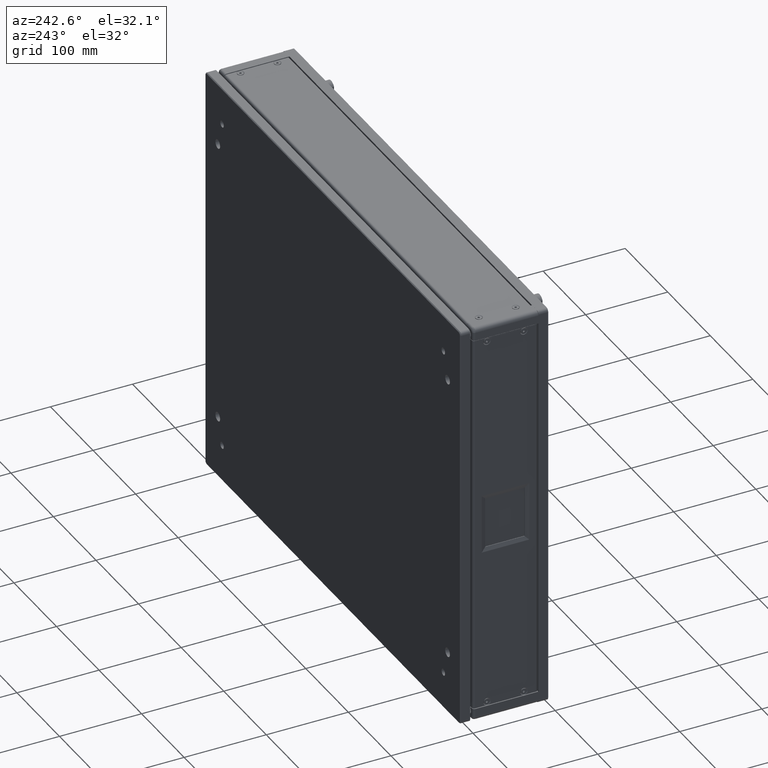
[diagram: clean part render]
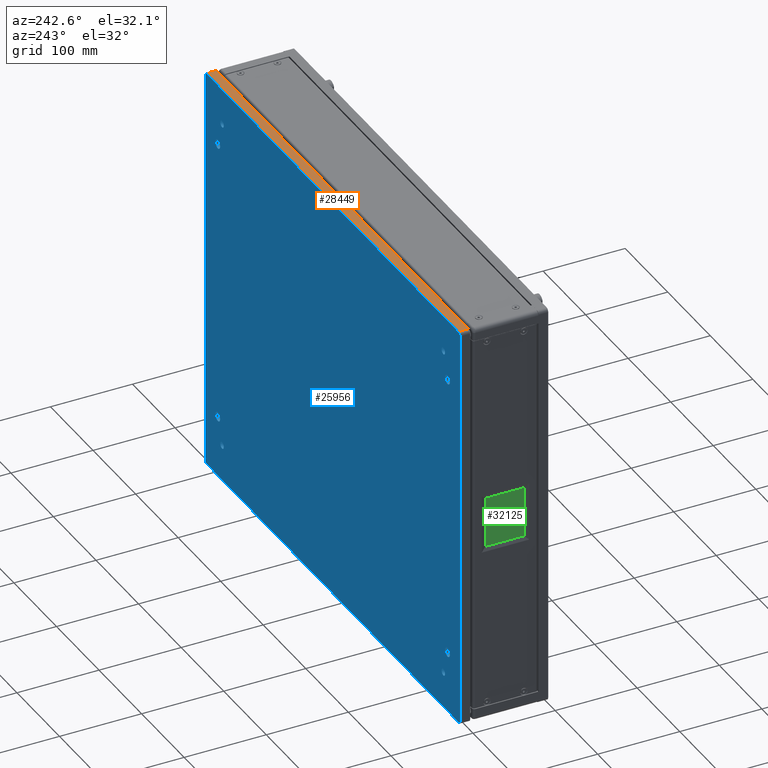
[diagram: same view with three faces highlighted in distinct colors, each labeled with its STEP entity id]
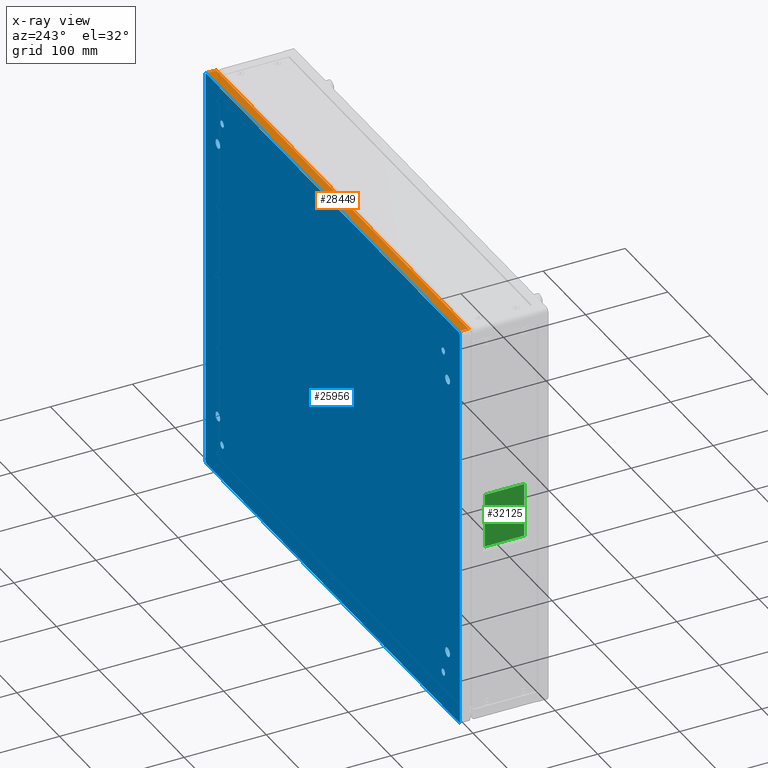
[diagram: x-ray of the same camera — body ghosted, the three highlighted faces saturated]
A machine part, auxiliary view with three faces highlighted in distinct colors.
The next image is the same camera in x-ray (body ghosted, the three faces saturated) — at least one of them is partly hidden behind the body in this view.
Their STEP definitions:

[orange] entity #28449 — the highlighted planar face has unit normal (-0, 0, 1).
#1026 = EDGE_CURVE ( 'NONE', #28389, #7943, #37417, .T. ) ;
#3251 = ORIENTED_EDGE ( 'NONE', *, *, #13116, .T. ) ;
#3255 = CARTESIAN_POINT ( 'NONE',  ( -291.5487244020132493, 113.1371811005063108, 795.0000000000001137 ) ) ;
#5831 = LINE ( 'NONE', #3255, #14420 ) ;
#7221 = CARTESIAN_POINT ( 'NONE',  ( 300.4512755979867507, 113.1371811005064529, 795.0000000000001137 ) ) ;
#7943 = VERTEX_POINT ( 'NONE', #11109 ) ;
#8707 = ORIENTED_EDGE ( 'NONE', *, *, #1026, .T. ) ;
#8915 = VECTOR ( 'NONE', #16254, 1000.000000000000000 ) ;
#9831 = EDGE_LOOP ( 'NONE', ( #13957, #35931, #3251, #8707 ) ) ;
#9903 = CARTESIAN_POINT ( 'NONE',  ( -291.5487244020132493, 101.1371811005063250, 795.0000000000001137 ) ) ;
#11109 = CARTESIAN_POINT ( 'NONE',  ( -291.5487244020132493, 112.1371811004934358, 795.0000000000153477 ) ) ;
#11855 = DIRECTION ( 'NONE',  ( -3.209238430557092508E-17, 8.030019939456231506E-17, 1.000000000000000000 ) ) ;
#13116 = EDGE_CURVE ( 'NONE', #14045, #28389, #34741, .T. ) ;
#13957 = ORIENTED_EDGE ( 'NONE', *, *, #24032, .F. ) ;
#14045 = VERTEX_POINT ( 'NONE', #23901 ) ;
#14420 = VECTOR ( 'NONE', #17921, 1000.000000000000000 ) ;
#15656 = CARTESIAN_POINT ( 'NONE',  ( -65.92273067638645045, 101.1371811005063677, 795.0000000000001137 ) ) ;
#16254 = DIRECTION ( 'NONE',  ( -1.000000000000000000, -2.376672073132158167E-16, -3.209238430557090659E-17 ) ) ;
#17416 = DIRECTION ( 'NONE',  ( -1.000000000000000000, -2.376672073132158167E-16, -3.209238430557090659E-17 ) ) ;
#17444 = VERTEX_POINT ( 'NONE', #9903 ) ;
#17921 = DIRECTION ( 'NONE',  ( -2.376672073132158167E-16, 1.000000000000000000, -8.030019939456232739E-17 ) ) ;
#20962 = CARTESIAN_POINT ( 'NONE',  ( 304.4512755979866938, 113.1371811005064529, 795.0000000000001137 ) ) ;
#21778 = LINE ( 'NONE', #15656, #36329 ) ;
#23313 = VECTOR ( 'NONE', #37717, 1000.000000000000000 ) ;
#23901 = CARTESIAN_POINT ( 'NONE',  ( 300.4512755979867507, 101.1371811005064529, 795.0000000000001137 ) ) ;
#24032 = EDGE_CURVE ( 'NONE', #17444, #7943, #5831, .T. ) ;
#26282 = EDGE_CURVE ( 'NONE', #14045, #17444, #21778, .T. ) ;
#27729 = DIRECTION ( 'NONE',  ( -1.000000000000000000, -2.376672073132158167E-16, 1.066854937725736363E-16 ) ) ;
#28248 = AXIS2_PLACEMENT_3D ( 'NONE', #20962, #11855, #17416 ) ;
#28389 = VERTEX_POINT ( 'NONE', #31474 ) ;
#28449 = ADVANCED_FACE ( 'NONE', ( #32448 ), #35424, .T. ) ;
#31274 = CARTESIAN_POINT ( 'NONE',  ( 304.4512755979866938, 112.1371811005065666, 795.0000000000001137 ) ) ;
#31474 = CARTESIAN_POINT ( 'NONE',  ( 300.4512755979867507, 112.1371811005065666, 795.0000000000001137 ) ) ;
#32448 = FACE_OUTER_BOUND ( 'NONE', #9831, .T. ) ;
#34741 = LINE ( 'NONE', #7221, #23313 ) ;
#35424 = PLANE ( 'NONE',  #28248 ) ;
#35931 = ORIENTED_EDGE ( 'NONE', *, *, #26282, .F. ) ;
#36329 = VECTOR ( 'NONE', #27729, 1000.000000000000000 ) ;
#37417 = LINE ( 'NONE', #31274, #8915 ) ;
#37717 = DIRECTION ( 'NONE',  ( -2.376672073132158167E-16, 1.000000000000000000, -8.030019939456232739E-17 ) ) ;

[blue] entity #25956 — the highlighted planar face has unit normal (0, -1, 0).
#132 = AXIS2_PLACEMENT_3D ( 'NONE', #32128, #4989, #26191 ) ;
#1765 = DIRECTION ( 'NONE',  ( 2.376672073132158167E-16, -1.000000000000000000, 8.030019939456232739E-17 ) ) ;
#1874 = CARTESIAN_POINT ( 'NONE',  ( 303.4512755979646386, 113.1371811005209054, 791.0000000000001137 ) ) ;
#1968 = EDGE_CURVE ( 'NONE', #13243, #6346, #6423, .T. ) ;
#2000 = CARTESIAN_POINT ( 'NONE',  ( 274.4512755979866938, 113.1371811005064387, 724.5000000000000000 ) ) ;
#2005 = CARTESIAN_POINT ( 'NONE',  ( -265.5487244020134199, 113.1371811005062824, 376.5000000000001705 ) ) ;
#2988 = LINE ( 'NONE', #12296, #10324 ) ;
#3130 = DIRECTION ( 'NONE',  ( -1.000000000000000000, 0.000000000000000000, 0.000000000000000000 ) ) ;
#3273 = ORIENTED_EDGE ( 'NONE', *, *, #27300, .T. ) ;
#3500 = EDGE_CURVE ( 'NONE', #6224, #28692, #24018, .T. ) ;
#3929 = CIRCLE ( 'NONE', #9012, 4.000000000000003553 ) ;
#4126 = VERTEX_POINT ( 'NONE', #7306 ) ;
#4175 = CARTESIAN_POINT ( 'NONE',  ( -294.5487244020132493, 113.1371811005063108, 795.0000000000001137 ) ) ;
#4219 = VECTOR ( 'NONE', #27200, 1000.000000000000000 ) ;
#4367 = DIRECTION ( 'NONE',  ( -5.117434254132198459E-17, -1.358113506258201544E-16, -1.000000000000000000 ) ) ;
#4527 = AXIS2_PLACEMENT_3D ( 'NONE', #29229, #25895, #8255 ) ;
#4974 = FACE_BOUND ( 'NONE', #8823, .T. ) ;
#4989 = DIRECTION ( 'NONE',  ( 1.292469900655968209E-16, -1.000000000000000000, 8.030019939456233971E-17 ) ) ;
#5068 = DIRECTION ( 'NONE',  ( 0.000000000000000000, 0.000000000000000000, -1.000000000000000000 ) ) ;
#5305 = AXIS2_PLACEMENT_3D ( 'NONE', #33454, #18417, #29888 ) ;
#5315 = EDGE_CURVE ( 'NONE', #8155, #8155, #32952, .T. ) ;
#5833 = DIRECTION ( 'NONE',  ( 0.000000000000000000, 0.000000000000000000, 1.000000000000000000 ) ) ;
#5841 = EDGE_CURVE ( 'NONE', #32103, #32103, #19714, .T. ) ;
#6001 = LINE ( 'NONE', #38691, #4219 ) ;
#6161 = ORIENTED_EDGE ( 'NONE', *, *, #17603, .T. ) ;
#6224 = VERTEX_POINT ( 'NONE', #34858 ) ;
#6346 = VERTEX_POINT ( 'NONE', #29498 ) ;
#6423 = CIRCLE ( 'NONE', #132, 3.000000000058011818 ) ;
#6450 = AXIS2_PLACEMENT_3D ( 'NONE', #22638, #7995, #17098 ) ;
#6819 = VERTEX_POINT ( 'NONE', #20539 ) ;
#7233 = DIRECTION ( 'NONE',  ( 0.000000000000000000, 0.000000000000000000, -1.000000000000000000 ) ) ;
#7238 = AXIS2_PLACEMENT_3D ( 'NONE', #17343, #23670, #5833 ) ;
#7306 = CARTESIAN_POINT ( 'NONE',  ( -265.5487244020132493, 113.1371811005063108, 724.5000000000002274 ) ) ;
#7995 = DIRECTION ( 'NONE',  ( 2.376672073132158167E-16, -1.000000000000000000, 8.030019939456232739E-17 ) ) ;
#8080 = EDGE_CURVE ( 'NONE', #6819, #33621, #22394, .T. ) ;
#8155 = VERTEX_POINT ( 'NONE', #26362 ) ;
#8167 = FACE_BOUND ( 'NONE', #25282, .T. ) ;
#8255 = DIRECTION ( 'NONE',  ( 0.000000000000000000, 0.000000000000000000, 1.000000000000000000 ) ) ;
#8297 = CARTESIAN_POINT ( 'NONE',  ( -255.5487244020133062, 113.1371811005063108, 750.0000000000002274 ) ) ;
#8327 = EDGE_CURVE ( 'NONE', #4126, #4126, #25602, .T. ) ;
#8350 = FACE_BOUND ( 'NONE', #8559, .T. ) ;
#8491 = VECTOR ( 'NONE', #37671, 1000.000000000000000 ) ;
#8559 = EDGE_LOOP ( 'NONE', ( #14184 ) ) ;
#8573 = CIRCLE ( 'NONE', #29424, 3.000000000019764634 ) ;
#8823 = EDGE_LOOP ( 'NONE', ( #21777 ) ) ;
#9012 = AXIS2_PLACEMENT_3D ( 'NONE', #17168, #11218, #5068 ) ;
#9367 = DIRECTION ( 'NONE',  ( 0.000000000000000000, 0.000000000000000000, -1.000000000000000000 ) ) ;
#9929 = ORIENTED_EDGE ( 'NONE', *, *, #1968, .F. ) ;
#10033 = CARTESIAN_POINT ( 'NONE',  ( 300.4512755979866938, 113.1371811005446233, 295.9999999999787406 ) ) ;
#10324 = VECTOR ( 'NONE', #30311, 1000.000000000000000 ) ;
#10823 = ORIENTED_EDGE ( 'NONE', *, *, #15904, .T. ) ;
#11120 = DIRECTION ( 'NONE',  ( 2.376672073132158167E-16, -1.000000000000000000, 8.030019939456232739E-17 ) ) ;
#11190 = VERTEX_POINT ( 'NONE', #24901 ) ;
#11218 = DIRECTION ( 'NONE',  ( 2.376672073132158167E-16, -1.000000000000000000, 8.030019939456232739E-17 ) ) ;
#11483 = AXIS2_PLACEMENT_3D ( 'NONE', #37137, #33765, #7233 ) ;
#12296 = CARTESIAN_POINT ( 'NONE',  ( -295.5487244020132493, 113.1371811005062682, 296.0000000000001705 ) ) ;
#12611 = DIRECTION ( 'NONE',  ( 0.000000000000000000, 0.000000000000000000, -1.000000000000000000 ) ) ;
#13243 = VERTEX_POINT ( 'NONE', #1874 ) ;
#13320 = FACE_BOUND ( 'NONE', #20789, .T. ) ;
#13528 = CARTESIAN_POINT ( 'NONE',  ( 304.4512755979866938, 113.1371811005064529, 794.0000000000001137 ) ) ;
#14101 = VERTEX_POINT ( 'NONE', #34324 ) ;
#14184 = ORIENTED_EDGE ( 'NONE', *, *, #5841, .T. ) ;
#15494 = ORIENTED_EDGE ( 'NONE', *, *, #36513, .F. ) ;
#15557 = DIRECTION ( 'NONE',  ( 2.376672073132158167E-16, -1.000000000000000000, 8.030019939456232739E-17 ) ) ;
#15904 = EDGE_CURVE ( 'NONE', #21087, #21087, #22258, .T. ) ;
#16677 = EDGE_LOOP ( 'NONE', ( #22468, #9929, #23904, #17753, #37128, #17169, #15494, #29314 ) ) ;
#16848 = AXIS2_PLACEMENT_3D ( 'NONE', #21035, #27366, #9367 ) ;
#17098 = DIRECTION ( 'NONE',  ( 0.000000000000000000, 0.000000000000000000, 1.000000000000000000 ) ) ;
#17168 = CARTESIAN_POINT ( 'NONE',  ( -255.5487244020133630, 113.1371811005062824, 340.0000000000001705 ) ) ;
#17169 = ORIENTED_EDGE ( 'NONE', *, *, #8080, .F. ) ;
#17343 = CARTESIAN_POINT ( 'NONE',  ( -265.5487244020132493, 113.1371811005063108, 719.0000000000002274 ) ) ;
#17547 = EDGE_CURVE ( 'NONE', #26736, #26736, #23513, .T. ) ;
#17603 = EDGE_CURVE ( 'NONE', #14101, #14101, #3929, .T. ) ;
#17753 = ORIENTED_EDGE ( 'NONE', *, *, #35512, .F. ) ;
#18198 = DIRECTION ( 'NONE',  ( 1.292469900655946022E-16, -1.000000000000000000, 8.030019939456233971E-17 ) ) ;
#18417 = DIRECTION ( 'NONE',  ( 2.376672073132158167E-16, -1.000000000000000000, 8.030019939456232739E-17 ) ) ;
#18572 = EDGE_CURVE ( 'NONE', #33621, #23687, #2988, .T. ) ;
#18629 = EDGE_LOOP ( 'NONE', ( #6161 ) ) ;
#19045 = LINE ( 'NONE', #4175, #25059 ) ;
#19069 = LINE ( 'NONE', #13528, #8491 ) ;
#19247 = FACE_BOUND ( 'NONE', #37164, .T. ) ;
#19248 = CARTESIAN_POINT ( 'NONE',  ( 264.4512755979866938, 113.1371811005064103, 336.0000000000001705 ) ) ;
#19714 = CIRCLE ( 'NONE', #6450, 5.500000000000060396 ) ;
#19730 = VERTEX_POINT ( 'NONE', #23103 ) ;
#20042 = FACE_BOUND ( 'NONE', #27100, .T. ) ;
#20043 = VERTEX_POINT ( 'NONE', #19248 ) ;
#20417 = PLANE ( 'NONE',  #33777 ) ;
#20539 = CARTESIAN_POINT ( 'NONE',  ( -294.5487244020346225, 113.1371811005215022, 299.0000000000001705 ) ) ;
#20590 = ORIENTED_EDGE ( 'NONE', *, *, #36281, .T. ) ;
#20789 = EDGE_LOOP ( 'NONE', ( #34382 ) ) ;
#21035 = CARTESIAN_POINT ( 'NONE',  ( 264.4512755979866938, 113.1371811005064103, 340.0000000000001705 ) ) ;
#21087 = VERTEX_POINT ( 'NONE', #30189 ) ;
#21777 = ORIENTED_EDGE ( 'NONE', *, *, #17547, .T. ) ;
#21833 = CIRCLE ( 'NONE', #23120, 5.500000000000005329 ) ;
#22258 = CIRCLE ( 'NONE', #30481, 4.000000000000003553 ) ;
#22394 = CIRCLE ( 'NONE', #5305, 3.000000000042746251 ) ;
#22468 = ORIENTED_EDGE ( 'NONE', *, *, #29024, .F. ) ;
#22537 = CIRCLE ( 'NONE', #16848, 4.000000000000003553 ) ;
#22638 = CARTESIAN_POINT ( 'NONE',  ( 274.4512755979866938, 113.1371811005064387, 719.0000000000000000 ) ) ;
#23103 = CARTESIAN_POINT ( 'NONE',  ( 274.4512755979865801, 113.1371811005064103, 376.5000000000000000 ) ) ;
#23105 = EDGE_CURVE ( 'NONE', #11190, #13243, #6001, .T. ) ;
#23120 = AXIS2_PLACEMENT_3D ( 'NONE', #33374, #15557, #24278 ) ;
#23218 = FACE_BOUND ( 'NONE', #18629, .T. ) ;
#23513 = CIRCLE ( 'NONE', #4527, 5.500000000000005329 ) ;
#23670 = DIRECTION ( 'NONE',  ( 2.376672073132158167E-16, -1.000000000000000000, 8.030019939456232739E-17 ) ) ;
#23687 = VERTEX_POINT ( 'NONE', #10033 ) ;
#23904 = ORIENTED_EDGE ( 'NONE', *, *, #23105, .F. ) ;
#24018 = CIRCLE ( 'NONE', #36645, 3.000000000057900795 ) ;
#24278 = DIRECTION ( 'NONE',  ( 0.000000000000000000, 0.000000000000000000, 1.000000000000000000 ) ) ;
#24901 = CARTESIAN_POINT ( 'NONE',  ( 303.4512755979675376, 113.1371811005255239, 299.0000000000001137 ) ) ;
#25059 = VECTOR ( 'NONE', #4367, 1000.000000000000000 ) ;
#25282 = EDGE_LOOP ( 'NONE', ( #3273 ) ) ;
#25602 = CIRCLE ( 'NONE', #7238, 5.500000000000060396 ) ;
#25799 = CARTESIAN_POINT ( 'NONE',  ( -65.92273067638647888, 113.1371811005063535, 553.3565087996971670 ) ) ;
#25895 = DIRECTION ( 'NONE',  ( 2.376672073132158167E-16, -1.000000000000000000, 8.030019939456232739E-17 ) ) ;
#25956 = ADVANCED_FACE ( 'NONE', ( #37259, #19247, #28354, #13320, #23218, #8350, #8167, #4974, #20042 ), #20417, .F. ) ;
#26191 = DIRECTION ( 'NONE',  ( -1.000000000000000000, 0.000000000000000000, 0.000000000000000000 ) ) ;
#26362 = CARTESIAN_POINT ( 'NONE',  ( 264.4512755979866938, 113.1371811005064387, 746.0000000000001137 ) ) ;
#26736 = VERTEX_POINT ( 'NONE', #2005 ) ;
#27100 = EDGE_LOOP ( 'NONE', ( #38304 ) ) ;
#27200 = DIRECTION ( 'NONE',  ( 1.621966450038267548E-16, 1.358113506258202037E-16, 1.000000000000000000 ) ) ;
#27300 = EDGE_CURVE ( 'NONE', #19730, #19730, #21833, .T. ) ;
#27366 = DIRECTION ( 'NONE',  ( 2.376672073132158167E-16, -1.000000000000000000, 8.030019939456232739E-17 ) ) ;
#27667 = CARTESIAN_POINT ( 'NONE',  ( 300.4512755979866938, 113.1371811005446233, 299.0000000000001137 ) ) ;
#28354 = FACE_BOUND ( 'NONE', #28407, .T. ) ;
#28407 = EDGE_LOOP ( 'NONE', ( #10823 ) ) ;
#28692 = VERTEX_POINT ( 'NONE', #35190 ) ;
#29024 = EDGE_CURVE ( 'NONE', #6346, #6224, #19069, .T. ) ;
#29135 = DIRECTION ( 'NONE',  ( -1.066854937725736117E-16, -8.030019939456235204E-17, -1.000000000000000000 ) ) ;
#29229 = CARTESIAN_POINT ( 'NONE',  ( -265.5487244020134199, 113.1371811005062824, 371.0000000000001705 ) ) ;
#29314 = ORIENTED_EDGE ( 'NONE', *, *, #3500, .F. ) ;
#29424 = AXIS2_PLACEMENT_3D ( 'NONE', #27667, #33196, #12611 ) ;
#29462 = DIRECTION ( 'NONE',  ( 0.000000000000000000, 0.000000000000000000, -1.000000000000000000 ) ) ;
#29498 = CARTESIAN_POINT ( 'NONE',  ( 300.4512755979867507, 113.1371811004971306, 794.0000000000094360 ) ) ;
#29888 = DIRECTION ( 'NONE',  ( 0.000000000000000000, 0.000000000000000000, -1.000000000000000000 ) ) ;
#30189 = CARTESIAN_POINT ( 'NONE',  ( -255.5487244020133062, 113.1371811005063108, 746.0000000000002274 ) ) ;
#30311 = DIRECTION ( 'NONE',  ( 1.000000000000000000, 2.376672073132158167E-16, -1.066854937725736363E-16 ) ) ;
#30481 = AXIS2_PLACEMENT_3D ( 'NONE', #8297, #1765, #29462 ) ;
#32103 = VERTEX_POINT ( 'NONE', #2000 ) ;
#32128 = CARTESIAN_POINT ( 'NONE',  ( 300.4512755979867507, 113.1371811004878225, 791.0000000000001137 ) ) ;
#32952 = CIRCLE ( 'NONE', #11483, 4.000000000000003553 ) ;
#33196 = DIRECTION ( 'NONE',  ( 2.376672073132158167E-16, -1.000000000000000000, 8.030019939456232739E-17 ) ) ;
#33224 = CARTESIAN_POINT ( 'NONE',  ( -291.5487244020132493, 113.1371811004876804, 791.0000000000001137 ) ) ;
#33374 = CARTESIAN_POINT ( 'NONE',  ( 274.4512755979865801, 113.1371811005064103, 371.0000000000000000 ) ) ;
#33454 = CARTESIAN_POINT ( 'NONE',  ( -291.5487244020132493, 113.1371811005215022, 299.0000000000001705 ) ) ;
#33621 = VERTEX_POINT ( 'NONE', #33932 ) ;
#33765 = DIRECTION ( 'NONE',  ( 2.376672073132158167E-16, -1.000000000000000000, 8.030019939456232739E-17 ) ) ;
#33777 = AXIS2_PLACEMENT_3D ( 'NONE', #25799, #11120, #29135 ) ;
#33932 = CARTESIAN_POINT ( 'NONE',  ( -291.5487244020132493, 113.1371811005215022, 295.9999999999787974 ) ) ;
#34324 = CARTESIAN_POINT ( 'NONE',  ( -255.5487244020133630, 113.1371811005062824, 336.0000000000001705 ) ) ;
#34382 = ORIENTED_EDGE ( 'NONE', *, *, #5315, .T. ) ;
#34858 = CARTESIAN_POINT ( 'NONE',  ( -291.5487244020132493, 113.1371811004876804, 794.0000000000500222 ) ) ;
#35190 = CARTESIAN_POINT ( 'NONE',  ( -294.5487244020225717, 113.1371811004969885, 791.0000000000001137 ) ) ;
#35512 = EDGE_CURVE ( 'NONE', #23687, #11190, #8573, .T. ) ;
#36281 = EDGE_CURVE ( 'NONE', #20043, #20043, #22537, .T. ) ;
#36513 = EDGE_CURVE ( 'NONE', #28692, #6819, #19045, .T. ) ;
#36645 = AXIS2_PLACEMENT_3D ( 'NONE', #33224, #18198, #3130 ) ;
#37128 = ORIENTED_EDGE ( 'NONE', *, *, #18572, .F. ) ;
#37137 = CARTESIAN_POINT ( 'NONE',  ( 264.4512755979866938, 113.1371811005064387, 750.0000000000001137 ) ) ;
#37164 = EDGE_LOOP ( 'NONE', ( #20590 ) ) ;
#37259 = FACE_OUTER_BOUND ( 'NONE', #16677, .T. ) ;
#37671 = DIRECTION ( 'NONE',  ( -1.000000000000000000, -3.070561463522881005E-16, 3.729655473350937672E-17 ) ) ;
#38304 = ORIENTED_EDGE ( 'NONE', *, *, #8327, .T. ) ;
#38691 = CARTESIAN_POINT ( 'NONE',  ( 303.4512755979866370, 113.1371811005064387, 295.0000000000001137 ) ) ;

[green] entity #32125 — the highlighted planar face has unit normal (-1, -0, -0).
#5816 = CARTESIAN_POINT ( 'NONE',  ( -292.8487244020110438, 57.88718110050638899, 546.0000000000067075 ) ) ;
#6225 = FACE_OUTER_BOUND ( 'NONE', #26844, .T. ) ;
#6318 = VERTEX_POINT ( 'NONE', #7746 ) ;
#6508 = VERTEX_POINT ( 'NONE', #9678 ) ;
#6919 = EDGE_CURVE ( 'NONE', #6508, #37009, #17196, .T. ) ;
#7692 = DIRECTION ( 'NONE',  ( -2.746164607805903985E-16, 1.000000000000000000, -2.316870616486058939E-15 ) ) ;
#7746 = CARTESIAN_POINT ( 'NONE',  ( -292.8487244020110438, 33.88718110050646715, 578.1000000000067303 ) ) ;
#8660 = EDGE_CURVE ( 'NONE', #23252, #6508, #35318, .T. ) ;
#8727 = ORIENTED_EDGE ( 'NONE', *, *, #6919, .T. ) ;
#9235 = LINE ( 'NONE', #33164, #32035 ) ;
#9678 = CARTESIAN_POINT ( 'NONE',  ( -292.8487244020110438, 81.88718110050631083, 512.1000000000066166 ) ) ;
#11242 = CARTESIAN_POINT ( 'NONE',  ( -292.8487244020110438, 33.88718110050646715, 578.1000000000067303 ) ) ;
#11364 = EDGE_CURVE ( 'NONE', #37009, #6318, #9235, .T. ) ;
#15830 = CARTESIAN_POINT ( 'NONE',  ( -292.8487244020111007, 81.88718110050646715, 578.1000000000066166 ) ) ;
#17196 = LINE ( 'NONE', #23917, #33717 ) ;
#17742 = DIRECTION ( 'NONE',  ( -5.724587470723469328E-16, 2.277445082941131469E-15, 1.000000000000000000 ) ) ;
#19353 = VECTOR ( 'NONE', #7692, 1000.000000000000000 ) ;
#20088 = DIRECTION ( 'NONE',  ( 5.724587470723469328E-16, -2.172310326821325146E-15, -1.000000000000000000 ) ) ;
#20654 = CARTESIAN_POINT ( 'NONE',  ( -292.8487244020111007, 81.88718110050646715, 578.1000000000066166 ) ) ;
#21070 = DIRECTION ( 'NONE',  ( -5.724587470723469328E-16, 2.172310326821325146E-15, 1.000000000000000000 ) ) ;
#22362 = VECTOR ( 'NONE', #20088, 1000.000000000000000 ) ;
#22694 = EDGE_CURVE ( 'NONE', #6318, #23252, #30129, .T. ) ;
#23252 = VERTEX_POINT ( 'NONE', #15830 ) ;
#23518 = DIRECTION ( 'NONE',  ( 2.746164607805903985E-16, -1.000000000000000000, 2.316870616486058939E-15 ) ) ;
#23891 = ORIENTED_EDGE ( 'NONE', *, *, #8660, .T. ) ;
#23917 = CARTESIAN_POINT ( 'NONE',  ( -292.8487244020110438, 33.88718110050631083, 512.1000000000067303 ) ) ;
#25478 = CARTESIAN_POINT ( 'NONE',  ( -292.8487244020110438, 33.88718110050631083, 512.1000000000067303 ) ) ;
#26844 = EDGE_LOOP ( 'NONE', ( #8727, #34244, #33599, #23891 ) ) ;
#27019 = PLANE ( 'NONE',  #36413 ) ;
#27212 = DIRECTION ( 'NONE',  ( -1.000000000000000000, -2.746164607805917297E-16, -5.724587470723463412E-16 ) ) ;
#30129 = LINE ( 'NONE', #11242, #19353 ) ;
#32035 = VECTOR ( 'NONE', #17742, 1000.000000000000000 ) ;
#32125 = ADVANCED_FACE ( 'NONE', ( #6225 ), #27019, .T. ) ;
#33164 = CARTESIAN_POINT ( 'NONE',  ( -292.8487244020110438, 33.88718110050646715, 578.1000000000067303 ) ) ;
#33599 = ORIENTED_EDGE ( 'NONE', *, *, #22694, .T. ) ;
#33717 = VECTOR ( 'NONE', #23518, 1000.000000000000000 ) ;
#34244 = ORIENTED_EDGE ( 'NONE', *, *, #11364, .T. ) ;
#35318 = LINE ( 'NONE', #20654, #22362 ) ;
#36413 = AXIS2_PLACEMENT_3D ( 'NONE', #5816, #27212, #21070 ) ;
#37009 = VERTEX_POINT ( 'NONE', #25478 ) ;